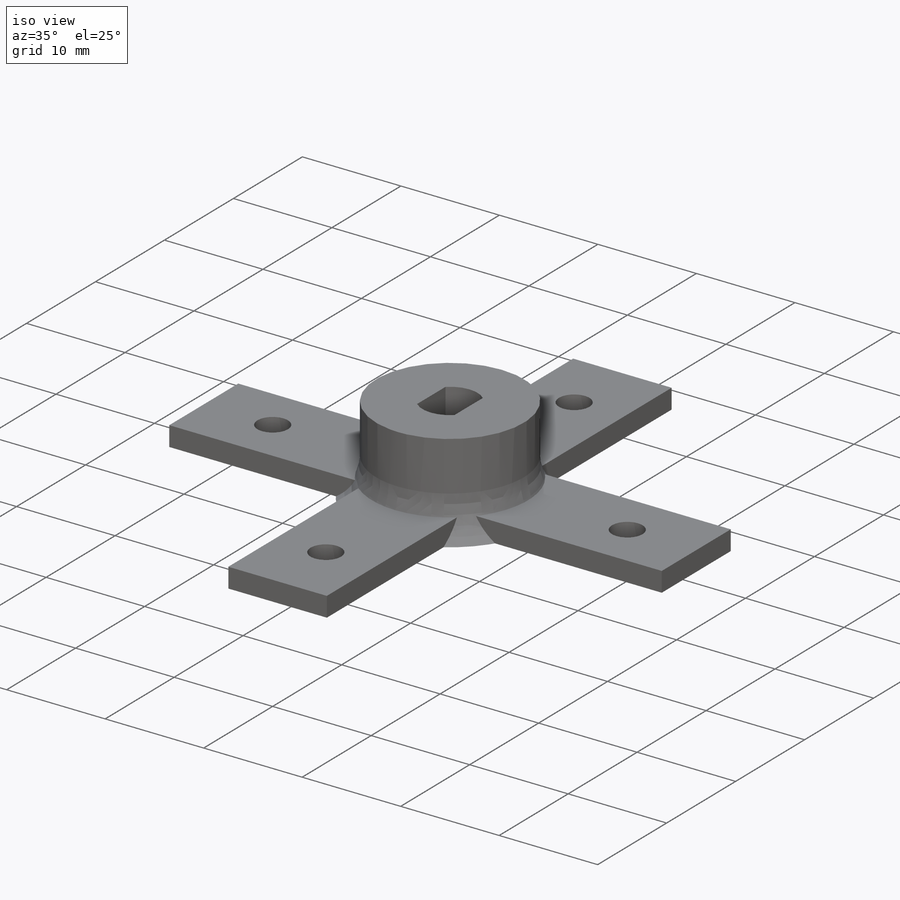
[diagram: iso view]
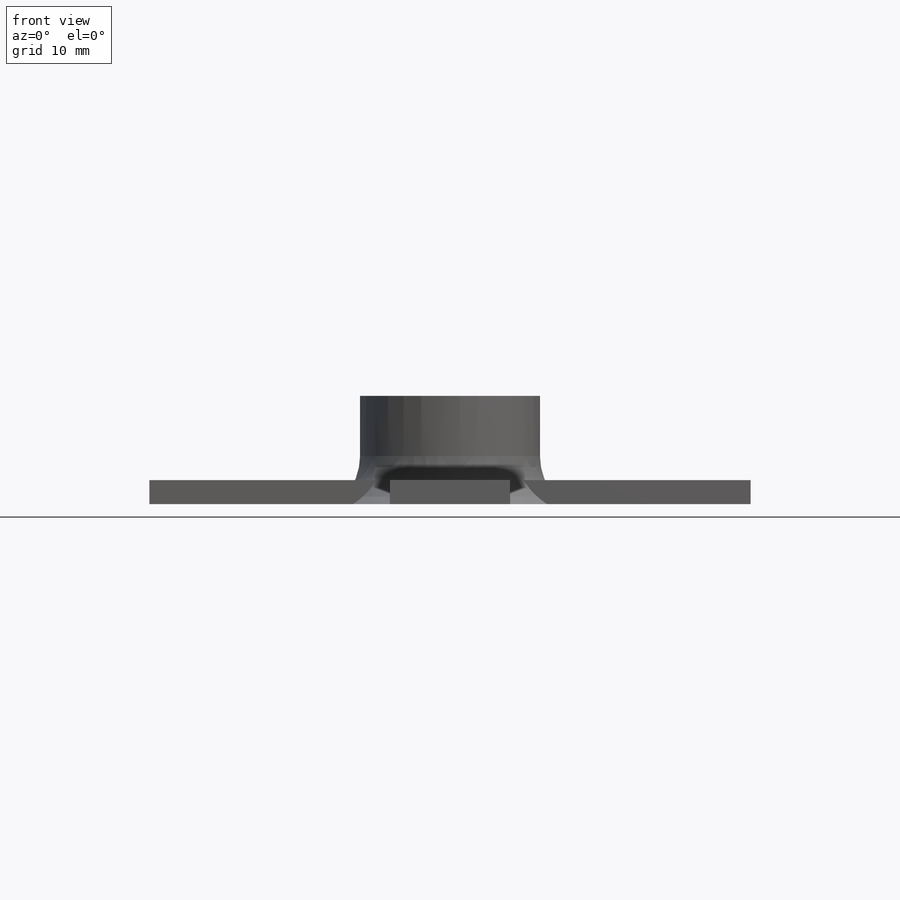
[diagram: front view]
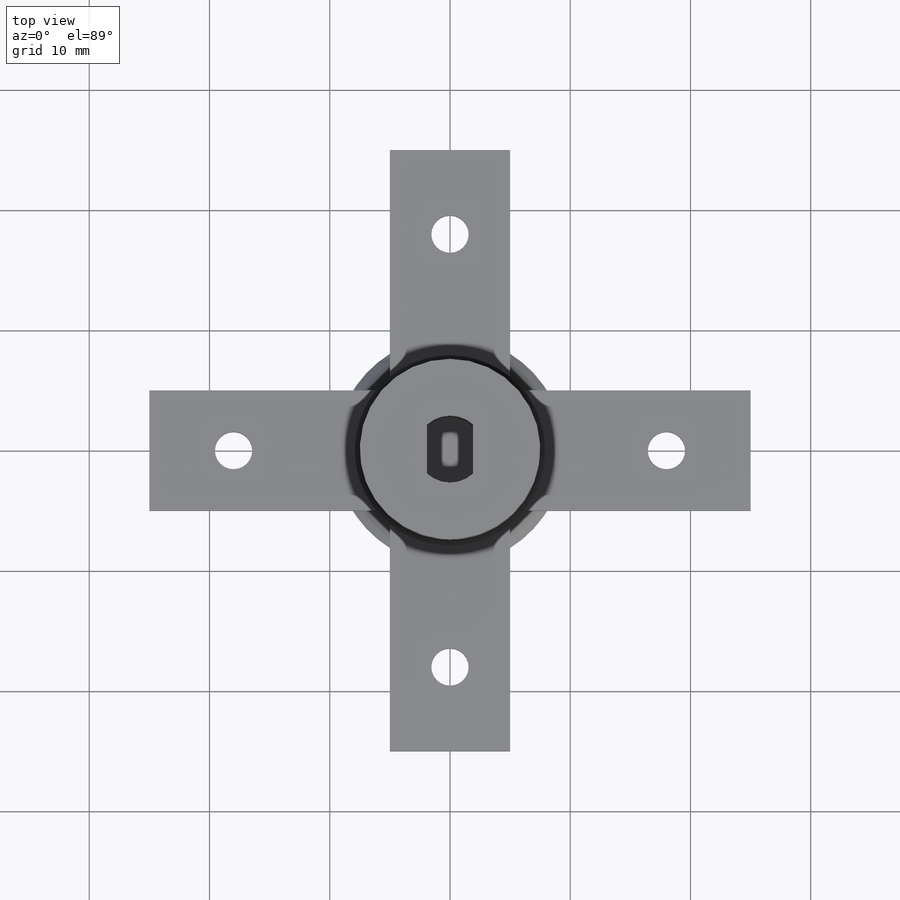
[diagram: top view]
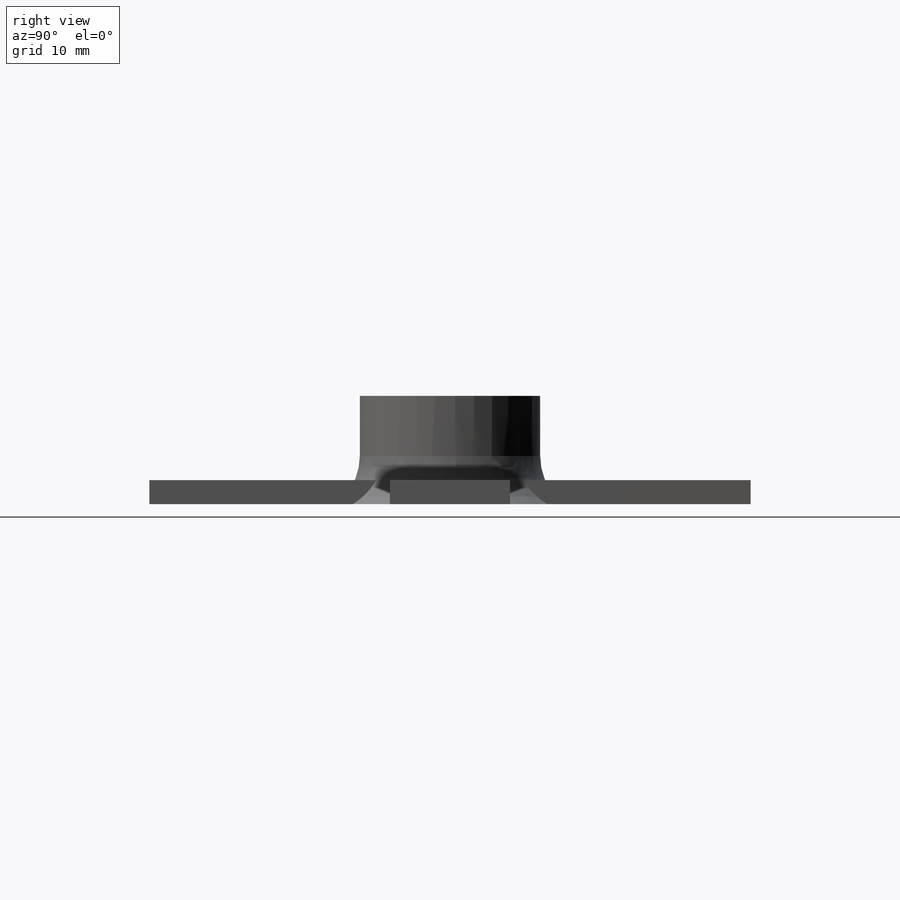
[diagram: right view]
SOLIDWORKS PART (.sldprt)
format: sldprt  version: not decoded by parser v0  size: 301,568 bytes
history: native  units: mm
features: sketch x8, extrude x4, cut_extrude x4, plane x3, fillet x2, material x1 (+10 scaffold rows collapsed)
feature tree (32):
  scaffold x10  (default folders/planes/origin — collapsed)
  material  "Material <sin especificar>"
  plane  "Alzado"
  plane  "Planta"
  plane  "Vista lateral"
  sketch  "Croquis1"  dims[D1=15.0mm]
  extrude  "Extruir1"  Depth=10mm
  sketch  "Croquis2"  dims[D1=5.6mm D4=2.8mm D2=3.8mm D3=1.9mm]
  cut_extrude  "Extruir2"  Depth=10mm
  sketch  "Croquis3"  dims[D1=60.0mm]
  extrude  "Extruir3"  Depth=9mm
  fillet  "Redondeo1"  Radius=5mm
  sketch  "Croquis4"  dims[D1=30.0mm D2=55.0mm D3=42.5mm D4=8.0mm D5=8.0mm D6=8.0mm D7=8.0mm D8=8.0mm D9=8.0mm D10=8.0mm D11=8.0mm]
  cut_extrude  "Extruir4"  Depth=10mm
  fillet  "Redondeo2"  Radius=2mm
  sketch  "Croquis5"
  cut_extrude  "Cortar-Extruir1"  Depth=10mm
  sketch  "Croquis7"  dims[D1=50.0mm D2=10.0mm]
  extrude  "Saliente-Extruir1"  Depth=2mm
  sketch  "Croquis8"  dims[D1=50.0mm D2=10.0mm]
  extrude  "Saliente-Extruir2"  Depth=2mm
  sketch  "Croquis10"  dims[D1=3.1mm D2=3.1mm D3=3.1mm D4=3.1mm D5=18.0mm D6=18.0mm D7=18.0mm]
  cut_extrude  "Cortar-Extruir2"  Depth=2mm
decode coverage: 17 of 18 modeling features carry decoded parameters
note: suppression state not decoded; provenance and decode notes live in map.json
